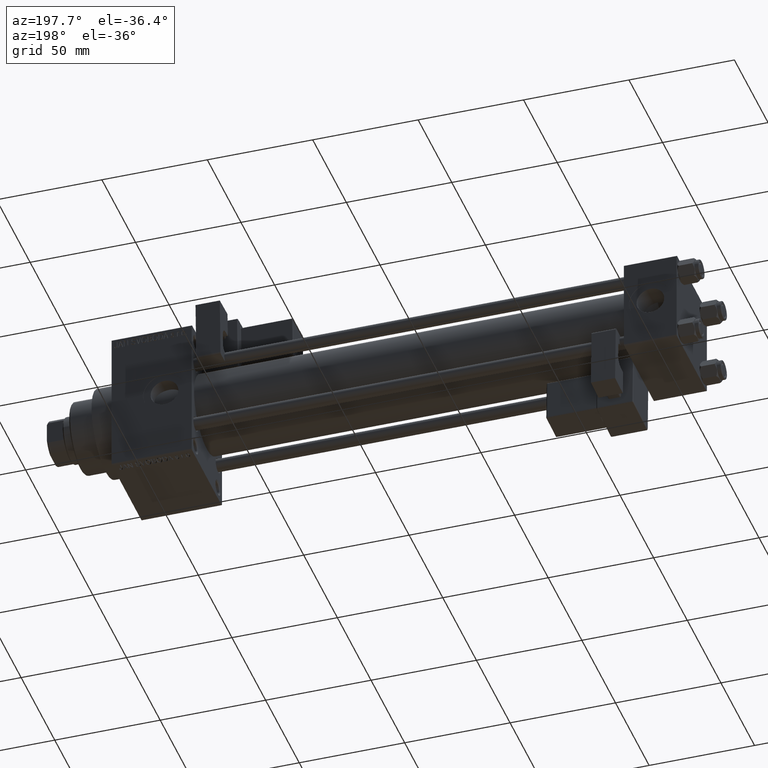
[diagram: clean part render]
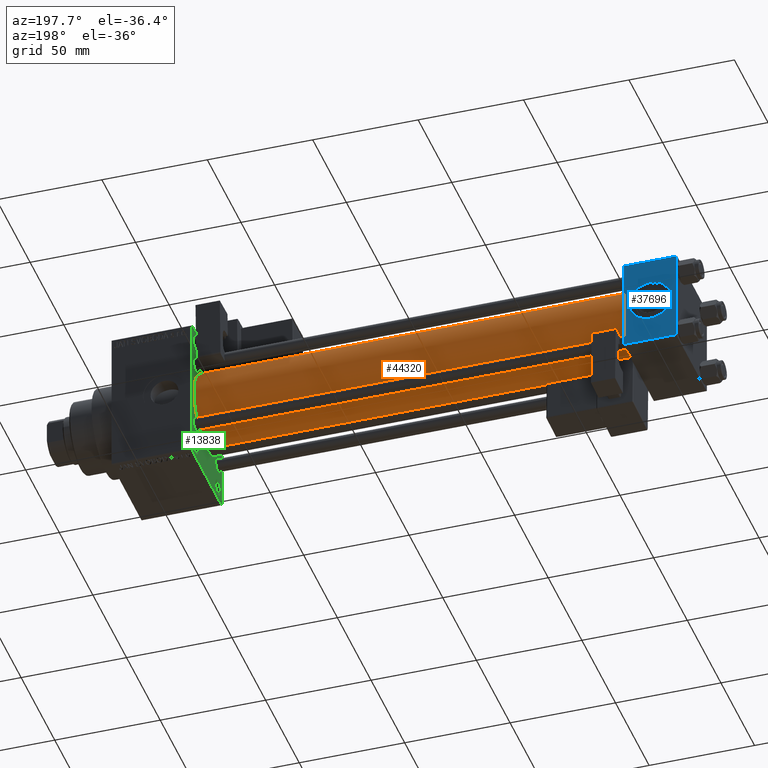
[diagram: same view with three faces highlighted in distinct colors, each labeled with its STEP entity id]
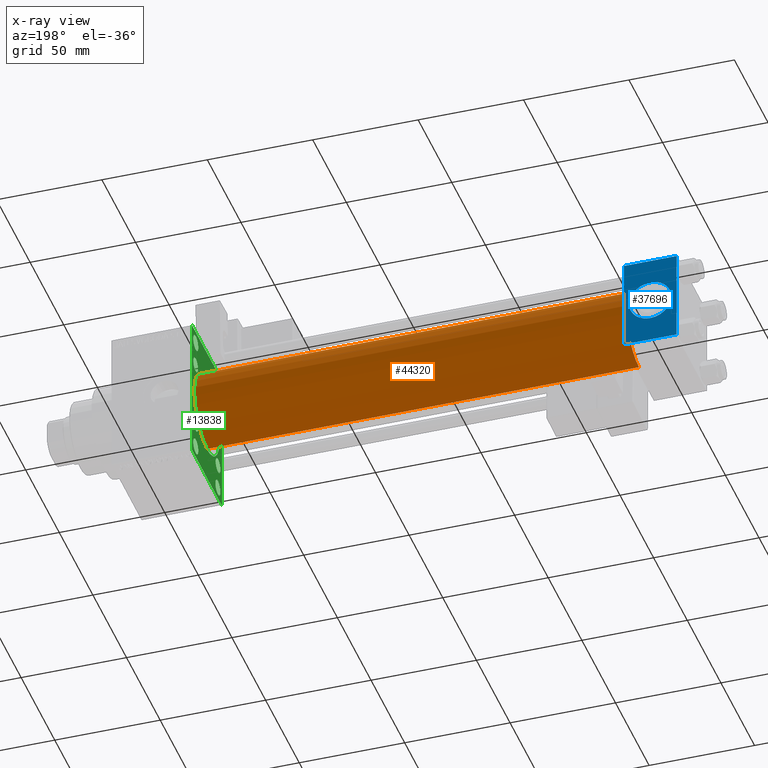
[diagram: x-ray of the same camera — body ghosted, the three highlighted faces saturated]
A machine part, auxiliary view with three faces highlighted in distinct colors.
The next image is the same camera in x-ray (body ghosted, the three faces saturated) — at least one of them is partly hidden behind the body in this view.
Their STEP definitions:

[orange] entity #44320 — the highlighted cylindrical surface (partial cylindrical patch) has radius 19 mm, axis along (-1, -0, -0).
#529 = EDGE_LOOP ( 'NONE', ( #37792, #46408, #26302, #29733 ) ) ;
#2255 = EDGE_CURVE ( 'NONE', #30719, #3682, #15830, .T. ) ;
#3272 = VERTEX_POINT ( 'NONE', #14357 ) ;
#3556 = DIRECTION ( 'NONE',  ( 0.000000000000000000, 0.000000000000000000, -1.000000000000000000 ) ) ;
#3682 = VERTEX_POINT ( 'NONE', #12189 ) ;
#8078 = LINE ( 'NONE', #20770, #20738 ) ;
#10568 = CARTESIAN_POINT ( 'NONE',  ( 229.9999999999999716, -2.602085213965210642E-15, 19.00000000000000000 ) ) ;
#12189 = CARTESIAN_POINT ( 'NONE',  ( 24.99999999999999289, -2.602085213965210642E-15, 19.00000000000000000 ) ) ;
#12488 = DIRECTION ( 'NONE',  ( 1.000000000000000000, -0.000000000000000000, 0.000000000000000000 ) ) ;
#12928 = AXIS2_PLACEMENT_3D ( 'NONE', #51319, #47178, #3556 ) ;
#14357 = CARTESIAN_POINT ( 'NONE',  ( 229.9999999999999716, -2.752562955852400657E-16, -19.00000000000000000 ) ) ;
#15472 = LINE ( 'NONE', #10568, #47056 ) ;
#15820 = DIRECTION ( 'NONE',  ( -1.000000000000000000, -0.000000000000000000, -0.000000000000000000 ) ) ;
#15830 = CIRCLE ( 'NONE', #18307, 19.00000000000000000 ) ;
#18307 = AXIS2_PLACEMENT_3D ( 'NONE', #44668, #12488, #31737 ) ;
#20738 = VECTOR ( 'NONE', #28836, 1000.000000000000000 ) ;
#20770 = CARTESIAN_POINT ( 'NONE',  ( 229.9999999999999716, -2.752562955852400657E-16, -19.00000000000000000 ) ) ;
#23561 = EDGE_CURVE ( 'NONE', #27071, #3682, #15472, .T. ) ;
#23630 = CYLINDRICAL_SURFACE ( 'NONE', #39734, 19.00000000000000000 ) ;
#23657 = CIRCLE ( 'NONE', #12928, 19.00000000000000000 ) ;
#23882 = DIRECTION ( 'NONE',  ( 0.000000000000000000, 0.000000000000000000, 1.000000000000000000 ) ) ;
#26302 = ORIENTED_EDGE ( 'NONE', *, *, #2255, .T. ) ;
#27071 = VERTEX_POINT ( 'NONE', #46811 ) ;
#28836 = DIRECTION ( 'NONE',  ( -1.000000000000000000, -0.000000000000000000, -0.000000000000000000 ) ) ;
#29733 = ORIENTED_EDGE ( 'NONE', *, *, #23561, .F. ) ;
#30719 = VERTEX_POINT ( 'NONE', #43751 ) ;
#31737 = DIRECTION ( 'NONE',  ( 0.000000000000000000, 0.000000000000000000, 1.000000000000000000 ) ) ;
#35576 = CARTESIAN_POINT ( 'NONE',  ( 229.9999999999999716, -2.602085213965210642E-15, 0.000000000000000000 ) ) ;
#37286 = EDGE_CURVE ( 'NONE', #3272, #27071, #23657, .T. ) ;
#37792 = ORIENTED_EDGE ( 'NONE', *, *, #37286, .F. ) ;
#39734 = AXIS2_PLACEMENT_3D ( 'NONE', #35576, #15820, #23882 ) ;
#43751 = CARTESIAN_POINT ( 'NONE',  ( 24.99999999999999289, -2.752562955852400657E-16, -19.00000000000000000 ) ) ;
#44320 = ADVANCED_FACE ( 'NONE', ( #51376 ), #23630, .T. ) ;
#44668 = CARTESIAN_POINT ( 'NONE',  ( 24.99999999999999289, -2.602085213965210642E-15, 0.000000000000000000 ) ) ;
#46408 = ORIENTED_EDGE ( 'NONE', *, *, #47667, .T. ) ;
#46811 = CARTESIAN_POINT ( 'NONE',  ( 229.9999999999999716, -2.602085213965210642E-15, 19.00000000000000000 ) ) ;
#47056 = VECTOR ( 'NONE', #50771, 1000.000000000000000 ) ;
#47178 = DIRECTION ( 'NONE',  ( 1.000000000000000000, 0.000000000000000000, 0.000000000000000000 ) ) ;
#47667 = EDGE_CURVE ( 'NONE', #3272, #30719, #8078, .T. ) ;
#50771 = DIRECTION ( 'NONE',  ( -1.000000000000000000, -0.000000000000000000, -0.000000000000000000 ) ) ;
#51319 = CARTESIAN_POINT ( 'NONE',  ( 229.9999999999999716, -2.602085213965210642E-15, 0.000000000000000000 ) ) ;
#51376 = FACE_OUTER_BOUND ( 'NONE', #529, .T. ) ;

[blue] entity #37696 — the highlighted planar face has unit normal (0, 1, 0).
#133 = LINE ( 'NONE', #43513, #39413 ) ;
#3141 = CARTESIAN_POINT ( 'NONE',  ( 25.00000000000000000, 22.50000000000000000, -21.99999999999998224 ) ) ;
#3425 = DIRECTION ( 'NONE',  ( 0.000000000000000000, 0.000000000000000000, -1.000000000000000000 ) ) ;
#3639 = DIRECTION ( 'NONE',  ( 0.000000000000000000, 1.000000000000000000, 0.000000000000000000 ) ) ;
#4028 = DIRECTION ( 'NONE',  ( 1.000000000000000000, 0.000000000000000000, 0.000000000000000000 ) ) ;
#5213 = FACE_OUTER_BOUND ( 'NONE', #15748, .T. ) ;
#5829 = ORIENTED_EDGE ( 'NONE', *, *, #34277, .T. ) ;
#7905 = VERTEX_POINT ( 'NONE', #32318 ) ;
#9115 = FACE_BOUND ( 'NONE', #37089, .T. ) ;
#10242 = CARTESIAN_POINT ( 'NONE',  ( 0.000000000000000000, 22.50000000000000000, 21.99999999999999645 ) ) ;
#10651 = CARTESIAN_POINT ( 'NONE',  ( 25.00000000000000000, 22.50000000000000000, 22.50000000000000355 ) ) ;
#10783 = VERTEX_POINT ( 'NONE', #10242 ) ;
#10818 = CARTESIAN_POINT ( 'NONE',  ( 12.50000000000000000, 22.50000000000000000, 0.000000000000000000 ) ) ;
#11167 = CARTESIAN_POINT ( 'NONE',  ( 25.00000000000000000, 22.50000000000000000, 21.99999999999999645 ) ) ;
#11197 = DIRECTION ( 'NONE',  ( -1.000000000000000000, 0.000000000000000000, 0.000000000000000000 ) ) ;
#11203 = EDGE_CURVE ( 'NONE', #47369, #15759, #27576, .T. ) ;
#14354 = EDGE_CURVE ( 'NONE', #10783, #31327, #133, .T. ) ;
#14825 = DIRECTION ( 'NONE',  ( 0.000000000000000000, 0.000000000000000000, 1.000000000000000000 ) ) ;
#15121 = CARTESIAN_POINT ( 'NONE',  ( 0.000000000000000000, 22.50000000000000000, 22.50000000000000355 ) ) ;
#15748 = EDGE_LOOP ( 'NONE', ( #5829, #30299, #33120, #48659 ) ) ;
#15759 = VERTEX_POINT ( 'NONE', #30003 ) ;
#16899 = DIRECTION ( 'NONE',  ( -0.000000000000000000, 1.000000000000000000, 0.000000000000000000 ) ) ;
#17750 = ORIENTED_EDGE ( 'NONE', *, *, #22008, .F. ) ;
#19271 = LINE ( 'NONE', #15121, #46916 ) ;
#19677 = CIRCLE ( 'NONE', #39558, 9.999999999999996447 ) ;
#19795 = CARTESIAN_POINT ( 'NONE',  ( 12.50000000000000000, 22.50000000000000000, 9.999999999999996447 ) ) ;
#20836 = CARTESIAN_POINT ( 'NONE',  ( 25.00000000000000000, 22.50000000000000000, -21.99999999999996803 ) ) ;
#21194 = ORIENTED_EDGE ( 'NONE', *, *, #35331, .F. ) ;
#21985 = AXIS2_PLACEMENT_3D ( 'NONE', #10818, #38869, #27703 ) ;
#22008 = EDGE_CURVE ( 'NONE', #44812, #7905, #19677, .T. ) ;
#23734 = CIRCLE ( 'NONE', #21985, 9.999999999999996447 ) ;
#24546 = AXIS2_PLACEMENT_3D ( 'NONE', #40548, #16899, #41058 ) ;
#26190 = VECTOR ( 'NONE', #30655, 1000.000000000000000 ) ;
#27576 = LINE ( 'NONE', #3141, #43409 ) ;
#27703 = DIRECTION ( 'NONE',  ( 0.000000000000000000, 0.000000000000000000, 1.000000000000000000 ) ) ;
#29637 = PLANE ( 'NONE',  #24546 ) ;
#30003 = CARTESIAN_POINT ( 'NONE',  ( 0.000000000000000000, 22.50000000000000000, -21.99999999999996803 ) ) ;
#30299 = ORIENTED_EDGE ( 'NONE', *, *, #11203, .T. ) ;
#30655 = DIRECTION ( 'NONE',  ( 0.000000000000000000, 0.000000000000000000, -1.000000000000000000 ) ) ;
#31327 = VERTEX_POINT ( 'NONE', #11167 ) ;
#31455 = CARTESIAN_POINT ( 'NONE',  ( 12.50000000000000000, 22.50000000000000000, 0.000000000000000000 ) ) ;
#32318 = CARTESIAN_POINT ( 'NONE',  ( 12.50000000000000178, 22.50000000000000000, -9.999999999999996447 ) ) ;
#33120 = ORIENTED_EDGE ( 'NONE', *, *, #37482, .F. ) ;
#34277 = EDGE_CURVE ( 'NONE', #31327, #47369, #46218, .T. ) ;
#35331 = EDGE_CURVE ( 'NONE', #7905, #44812, #23734, .T. ) ;
#37089 = EDGE_LOOP ( 'NONE', ( #17750, #21194 ) ) ;
#37482 = EDGE_CURVE ( 'NONE', #10783, #15759, #19271, .T. ) ;
#37696 = ADVANCED_FACE ( 'NONE', ( #9115, #5213 ), #29637, .T. ) ;
#38869 = DIRECTION ( 'NONE',  ( 0.000000000000000000, 1.000000000000000000, 0.000000000000000000 ) ) ;
#39413 = VECTOR ( 'NONE', #4028, 1000.000000000000000 ) ;
#39558 = AXIS2_PLACEMENT_3D ( 'NONE', #31455, #3639, #14825 ) ;
#40548 = CARTESIAN_POINT ( 'NONE',  ( 25.00000000000000000, 22.50000000000000000, 22.50000000000000355 ) ) ;
#41058 = DIRECTION ( 'NONE',  ( 0.000000000000000000, -0.000000000000000000, 1.000000000000000000 ) ) ;
#43409 = VECTOR ( 'NONE', #11197, 1000.000000000000000 ) ;
#43513 = CARTESIAN_POINT ( 'NONE',  ( 25.00000000000000000, 22.50000000000000000, 21.99999999999999645 ) ) ;
#44812 = VERTEX_POINT ( 'NONE', #19795 ) ;
#46218 = LINE ( 'NONE', #10651, #26190 ) ;
#46916 = VECTOR ( 'NONE', #3425, 1000.000000000000000 ) ;
#47369 = VERTEX_POINT ( 'NONE', #20836 ) ;
#48659 = ORIENTED_EDGE ( 'NONE', *, *, #14354, .T. ) ;

[green] entity #13838 — the highlighted planar face has unit normal (-1, 0, 0).
#402 = DIRECTION ( 'NONE',  ( 1.000000000000000000, 0.000000000000000000, 0.000000000000000000 ) ) ;
#663 = EDGE_CURVE ( 'NONE', #22984, #7656, #8312, .T. ) ;
#666 = CARTESIAN_POINT ( 'NONE',  ( 229.9999999999999716, 22.49999999999999645, 34.50000000000000000 ) ) ;
#954 = LINE ( 'NONE', #25628, #11184 ) ;
#982 = ORIENTED_EDGE ( 'NONE', *, *, #26119, .T. ) ;
#1127 = VECTOR ( 'NONE', #23765, 1000.000000000000000 ) ;
#1221 = ORIENTED_EDGE ( 'NONE', *, *, #30838, .T. ) ;
#1375 = CIRCLE ( 'NONE', #40397, 3.500000000000006661 ) ;
#1699 = ORIENTED_EDGE ( 'NONE', *, *, #31333, .T. ) ;
#2410 = VECTOR ( 'NONE', #34014, 1000.000000000000000 ) ;
#3259 = CARTESIAN_POINT ( 'NONE',  ( 229.9999999999999716, 16.59999999999999787, -20.10000000000000853 ) ) ;
#3272 = VERTEX_POINT ( 'NONE', #14357 ) ;
#3556 = DIRECTION ( 'NONE',  ( 0.000000000000000000, 0.000000000000000000, -1.000000000000000000 ) ) ;
#3703 = VERTEX_POINT ( 'NONE', #25666 ) ;
#3906 = CARTESIAN_POINT ( 'NONE',  ( 229.9999999999999716, -16.59999999999999076, 16.60000000000000853 ) ) ;
#4033 = DIRECTION ( 'NONE',  ( 0.000000000000000000, 0.000000000000000000, 1.000000000000000000 ) ) ;
#4073 = VERTEX_POINT ( 'NONE', #41374 ) ;
#4155 = CARTESIAN_POINT ( 'NONE',  ( 229.9999999999999716, -16.59999999999999076, -13.10000000000000142 ) ) ;
#4464 = CARTESIAN_POINT ( 'NONE',  ( 229.9999999999999716, -16.50000000000000000, -25.24999999999998934 ) ) ;
#4522 = DIRECTION ( 'NONE',  ( 0.000000000000000000, 0.000000000000000000, 1.000000000000000000 ) ) ;
#4626 = DIRECTION ( 'NONE',  ( 0.000000000000000000, 0.000000000000000000, 1.000000000000000000 ) ) ;
#4872 = AXIS2_PLACEMENT_3D ( 'NONE', #23144, #34836, #47018 ) ;
#4991 = DIRECTION ( 'NONE',  ( 0.000000000000000000, 0.000000000000000000, 1.000000000000000000 ) ) ;
#5288 = VERTEX_POINT ( 'NONE', #17557 ) ;
#5307 = CARTESIAN_POINT ( 'NONE',  ( 229.9999999999999716, 21.99999999999996803, 35.00000000000000000 ) ) ;
#5666 = DIRECTION ( 'NONE',  ( 0.000000000000000000, 0.000000000000000000, 1.000000000000000000 ) ) ;
#5951 = ORIENTED_EDGE ( 'NONE', *, *, #13362, .T. ) ;
#6220 = AXIS2_PLACEMENT_3D ( 'NONE', #24377, #40208, #4626 ) ;
#7116 = CIRCLE ( 'NONE', #32012, 3.500000000000003109 ) ;
#7231 = FACE_BOUND ( 'NONE', #14477, .T. ) ;
#7294 = DIRECTION ( 'NONE',  ( 0.000000000000000000, 0.000000000000000000, 1.000000000000000000 ) ) ;
#7409 = CIRCLE ( 'NONE', #8264, 19.00000000000000000 ) ;
#7656 = VERTEX_POINT ( 'NONE', #25871 ) ;
#7935 = AXIS2_PLACEMENT_3D ( 'NONE', #31857, #402, #39382 ) ;
#8154 = VERTEX_POINT ( 'NONE', #11674 ) ;
#8264 = AXIS2_PLACEMENT_3D ( 'NONE', #16886, #28096, #40791 ) ;
#8312 = CIRCLE ( 'NONE', #37330, 3.500000000000006661 ) ;
#8480 = ORIENTED_EDGE ( 'NONE', *, *, #49441, .T. ) ;
#8887 = CARTESIAN_POINT ( 'NONE',  ( 229.9999999999999716, -16.59999999999999076, 20.10000000000001208 ) ) ;
#9149 = CARTESIAN_POINT ( 'NONE',  ( 229.9999999999999716, 16.50000000000000000, 29.00000000000000355 ) ) ;
#9472 = CIRCLE ( 'NONE', #13623, 3.500000000000006661 ) ;
#9595 = ORIENTED_EDGE ( 'NONE', *, *, #13990, .T. ) ;
#9609 = ORIENTED_EDGE ( 'NONE', *, *, #35399, .T. ) ;
#10009 = VERTEX_POINT ( 'NONE', #18790 ) ;
#10316 = ORIENTED_EDGE ( 'NONE', *, *, #45759, .T. ) ;
#10870 = DIRECTION ( 'NONE',  ( -1.000000000000000000, 0.000000000000000000, -0.000000000000000000 ) ) ;
#11184 = VECTOR ( 'NONE', #17564, 1000.000000000000000 ) ;
#11213 = DIRECTION ( 'NONE',  ( 0.000000000000000000, 0.000000000000000000, 1.000000000000000000 ) ) ;
#11354 = LINE ( 'NONE', #15243, #49427 ) ;
#11584 = LINE ( 'NONE', #15735, #32775 ) ;
#11674 = CARTESIAN_POINT ( 'NONE',  ( 229.9999999999999716, 16.59999999999999787, -13.09999999999999787 ) ) ;
#12695 = DIRECTION ( 'NONE',  ( 1.000000000000000000, 0.000000000000000000, 0.000000000000000000 ) ) ;
#12928 = AXIS2_PLACEMENT_3D ( 'NONE', #51319, #47178, #3556 ) ;
#13075 = CARTESIAN_POINT ( 'NONE',  ( 229.9999999999999716, -16.50000000000000000, 29.00000000000000711 ) ) ;
#13290 = DIRECTION ( 'NONE',  ( 1.000000000000000000, 0.000000000000000000, 0.000000000000000000 ) ) ;
#13362 = EDGE_CURVE ( 'NONE', #25973, #8154, #9472, .T. ) ;
#13623 = AXIS2_PLACEMENT_3D ( 'NONE', #45596, #18580, #34188 ) ;
#13838 = ADVANCED_FACE ( 'NONE', ( #7231, #26981, #50073, #50574, #49818, #46433, #45671, #45932, #23072, #14255 ), #33993, .T. ) ;
#13990 = EDGE_CURVE ( 'NONE', #27315, #38132, #954, .T. ) ;
#14108 = DIRECTION ( 'NONE',  ( 0.000000000000000000, 0.000000000000000000, 1.000000000000000000 ) ) ;
#14255 = FACE_OUTER_BOUND ( 'NONE', #39534, .T. ) ;
#14357 = CARTESIAN_POINT ( 'NONE',  ( 229.9999999999999716, -2.752562955852400657E-16, -19.00000000000000000 ) ) ;
#14477 = EDGE_LOOP ( 'NONE', ( #1221, #22813 ) ) ;
#15114 = DIRECTION ( 'NONE',  ( 0.000000000000000000, 0.000000000000000000, 1.000000000000000000 ) ) ;
#15243 = CARTESIAN_POINT ( 'NONE',  ( 229.9999999999999716, -22.50000000000000355, 35.00000000000000000 ) ) ;
#15247 = DIRECTION ( 'NONE',  ( 1.000000000000000000, 0.000000000000000000, 0.000000000000000000 ) ) ;
#15560 = EDGE_CURVE ( 'NONE', #10009, #33577, #36116, .T. ) ;
#15562 = ORIENTED_EDGE ( 'NONE', *, *, #37286, .T. ) ;
#15735 = CARTESIAN_POINT ( 'NONE',  ( 229.9999999999999716, 22.49999999999999645, -35.00000000000000000 ) ) ;
#16277 = AXIS2_PLACEMENT_3D ( 'NONE', #3906, #30692, #7294 ) ;
#16491 = DIRECTION ( 'NONE',  ( 1.000000000000000000, 0.000000000000000000, 0.000000000000000000 ) ) ;
#16886 = CARTESIAN_POINT ( 'NONE',  ( 229.9999999999999716, -2.602085213965210642E-15, 0.000000000000000000 ) ) ;
#17477 = CARTESIAN_POINT ( 'NONE',  ( 229.9999999999999716, -16.59999999999999076, -16.60000000000000853 ) ) ;
#17557 = CARTESIAN_POINT ( 'NONE',  ( 229.9999999999999716, -16.50000000000000000, -32.75000000000000000 ) ) ;
#17564 = DIRECTION ( 'NONE',  ( -0.000000000000000000, 0.7071067811865279218, 0.7071067811865672237 ) ) ;
#18089 = EDGE_LOOP ( 'NONE', ( #27294, #5951 ) ) ;
#18111 = EDGE_CURVE ( 'NONE', #33577, #10009, #25276, .T. ) ;
#18318 = DIRECTION ( 'NONE',  ( 1.000000000000000000, 0.000000000000000000, 0.000000000000000000 ) ) ;
#18512 = EDGE_CURVE ( 'NONE', #8154, #25973, #25315, .T. ) ;
#18580 = DIRECTION ( 'NONE',  ( 1.000000000000000000, 0.000000000000000000, 0.000000000000000000 ) ) ;
#18790 = CARTESIAN_POINT ( 'NONE',  ( 229.9999999999999716, 16.50000000000000000, -32.75000000000000000 ) ) ;
#18817 = ORIENTED_EDGE ( 'NONE', *, *, #48704, .T. ) ;
#18952 = DIRECTION ( 'NONE',  ( 0.000000000000000000, 0.000000000000000000, -1.000000000000000000 ) ) ;
#19235 = CIRCLE ( 'NONE', #20871, 3.500000000000006661 ) ;
#20349 = AXIS2_PLACEMENT_3D ( 'NONE', #50920, #46527, #11213 ) ;
#20520 = EDGE_CURVE ( 'NONE', #27315, #4073, #11354, .T. ) ;
#20870 = VERTEX_POINT ( 'NONE', #4464 ) ;
#20871 = AXIS2_PLACEMENT_3D ( 'NONE', #43521, #16491, #4033 ) ;
#21270 = ORIENTED_EDGE ( 'NONE', *, *, #38092, .T. ) ;
#22075 = CARTESIAN_POINT ( 'NONE',  ( 229.9999999999999716, 28.49999999999937472, 28.50000000000095923 ) ) ;
#22316 = EDGE_CURVE ( 'NONE', #7656, #22984, #1375, .T. ) ;
#22813 = ORIENTED_EDGE ( 'NONE', *, *, #47543, .T. ) ;
#22869 = LINE ( 'NONE', #50374, #31863 ) ;
#22888 = CARTESIAN_POINT ( 'NONE',  ( 229.9999999999999716, 21.99999999999999645, -35.00000000000000000 ) ) ;
#22984 = VERTEX_POINT ( 'NONE', #4155 ) ;
#23072 = FACE_BOUND ( 'NONE', #35244, .T. ) ;
#23144 = CARTESIAN_POINT ( 'NONE',  ( 229.9999999999999716, -16.50000000000000000, 29.00000000000000711 ) ) ;
#23314 = CARTESIAN_POINT ( 'NONE',  ( 229.9999999999999716, 16.50000000000000000, 32.75000000000000711 ) ) ;
#23657 = CIRCLE ( 'NONE', #12928, 19.00000000000000000 ) ;
#23765 = DIRECTION ( 'NONE',  ( 0.000000000000000000, -1.000000000000000000, 0.000000000000000000 ) ) ;
#23829 = CARTESIAN_POINT ( 'NONE',  ( 229.9999999999999716, 16.59999999999999787, 16.60000000000000497 ) ) ;
#24063 = ORIENTED_EDGE ( 'NONE', *, *, #663, .T. ) ;
#24377 = CARTESIAN_POINT ( 'NONE',  ( 229.9999999999999716, 16.59999999999999787, -16.60000000000000497 ) ) ;
#24630 = ORIENTED_EDGE ( 'NONE', *, *, #22316, .T. ) ;
#24684 = DIRECTION ( 'NONE',  ( 1.000000000000000000, 0.000000000000000000, 0.000000000000000000 ) ) ;
#24786 = CIRCLE ( 'NONE', #45489, 3.750000000000003553 ) ;
#24813 = EDGE_LOOP ( 'NONE', ( #31667, #982 ) ) ;
#25184 = DIRECTION ( 'NONE',  ( 0.000000000000000000, 0.000000000000000000, 1.000000000000000000 ) ) ;
#25276 = CIRCLE ( 'NONE', #31153, 3.750000000000006661 ) ;
#25315 = CIRCLE ( 'NONE', #6220, 3.500000000000006661 ) ;
#25572 = CIRCLE ( 'NONE', #32222, 3.750000000000006661 ) ;
#25614 = DIRECTION ( 'NONE',  ( -0.000000000000000000, -0.7071067811865279218, -0.7071067811865672237 ) ) ;
#25628 = CARTESIAN_POINT ( 'NONE',  ( 229.9999999999999716, -28.50000000000061462, 28.49999999999903011 ) ) ;
#25666 = CARTESIAN_POINT ( 'NONE',  ( 229.9999999999999716, -16.50000000000000000, 32.75000000000001421 ) ) ;
#25670 = CARTESIAN_POINT ( 'NONE',  ( 229.9999999999999716, -21.99999999999998934, 35.00000000000000000 ) ) ;
#25871 = CARTESIAN_POINT ( 'NONE',  ( 229.9999999999999716, -16.59999999999999076, -20.10000000000001208 ) ) ;
#25973 = VERTEX_POINT ( 'NONE', #3259 ) ;
#25982 = LINE ( 'NONE', #22075, #2410 ) ;
#26119 = EDGE_CURVE ( 'NONE', #41370, #38873, #19235, .T. ) ;
#26137 = LINE ( 'NONE', #30290, #35830 ) ;
#26496 = VERTEX_POINT ( 'NONE', #23314 ) ;
#26520 = CIRCLE ( 'NONE', #30673, 3.500000000000006661 ) ;
#26693 = ORIENTED_EDGE ( 'NONE', *, *, #26727, .T. ) ;
#26727 = EDGE_CURVE ( 'NONE', #51074, #39036, #26137, .T. ) ;
#26981 = FACE_BOUND ( 'NONE', #45808, .T. ) ;
#27071 = VERTEX_POINT ( 'NONE', #46811 ) ;
#27213 = DIRECTION ( 'NONE',  ( 0.000000000000000000, 0.000000000000000000, -1.000000000000000000 ) ) ;
#27294 = ORIENTED_EDGE ( 'NONE', *, *, #18512, .T. ) ;
#27315 = VERTEX_POINT ( 'NONE', #50318 ) ;
#27644 = CARTESIAN_POINT ( 'NONE',  ( 229.9999999999999716, 16.59999999999999787, 13.09999999999999609 ) ) ;
#27753 = CIRCLE ( 'NONE', #32701, 3.750000000000000000 ) ;
#27998 = VERTEX_POINT ( 'NONE', #49432 ) ;
#28096 = DIRECTION ( 'NONE',  ( 1.000000000000000000, 0.000000000000000000, 0.000000000000000000 ) ) ;
#28112 = VERTEX_POINT ( 'NONE', #8887 ) ;
#28728 = VERTEX_POINT ( 'NONE', #5307 ) ;
#29450 = DIRECTION ( 'NONE',  ( 1.000000000000000000, 0.000000000000000000, 0.000000000000000000 ) ) ;
#29519 = VECTOR ( 'NONE', #50800, 1000.000000000000000 ) ;
#29584 = ORIENTED_EDGE ( 'NONE', *, *, #20520, .F. ) ;
#29766 = CIRCLE ( 'NONE', #4872, 3.750000000000000000 ) ;
#30036 = CARTESIAN_POINT ( 'NONE',  ( 229.9999999999999716, 16.50000000000000000, 29.00000000000000355 ) ) ;
#30290 = CARTESIAN_POINT ( 'NONE',  ( 229.9999999999999716, 28.50000000000060751, -28.49999999999902656 ) ) ;
#30557 = EDGE_CURVE ( 'NONE', #28728, #38132, #30802, .T. ) ;
#30673 = AXIS2_PLACEMENT_3D ( 'NONE', #23829, #15247, #39668 ) ;
#30692 = DIRECTION ( 'NONE',  ( 1.000000000000000000, 0.000000000000000000, 0.000000000000000000 ) ) ;
#30802 = LINE ( 'NONE', #35460, #1127 ) ;
#30838 = EDGE_CURVE ( 'NONE', #3703, #46914, #27753, .T. ) ;
#31153 = AXIS2_PLACEMENT_3D ( 'NONE', #40780, #24684, #44413 ) ;
#31252 = ORIENTED_EDGE ( 'NONE', *, *, #34566, .T. ) ;
#31333 = EDGE_CURVE ( 'NONE', #42166, #51074, #22869, .T. ) ;
#31662 = ORIENTED_EDGE ( 'NONE', *, *, #30557, .F. ) ;
#31666 = CARTESIAN_POINT ( 'NONE',  ( 229.9999999999999716, 16.50000000000000000, 25.25000000000000000 ) ) ;
#31667 = ORIENTED_EDGE ( 'NONE', *, *, #49705, .T. ) ;
#31857 = CARTESIAN_POINT ( 'NONE',  ( 229.9999999999999716, 16.50000000000000000, -28.99999999999999289 ) ) ;
#31863 = VECTOR ( 'NONE', #18952, 1000.000000000000000 ) ;
#31956 = CARTESIAN_POINT ( 'NONE',  ( 229.9999999999999716, -21.99999999999996092, -35.00000000000000000 ) ) ;
#32012 = AXIS2_PLACEMENT_3D ( 'NONE', #36341, #12695, #5666 ) ;
#32222 = AXIS2_PLACEMENT_3D ( 'NONE', #42393, #38762, #15114 ) ;
#32368 = EDGE_LOOP ( 'NONE', ( #21270, #41282 ) ) ;
#32426 = ORIENTED_EDGE ( 'NONE', *, *, #33862, .T. ) ;
#32701 = AXIS2_PLACEMENT_3D ( 'NONE', #13075, #35968, #4522 ) ;
#32775 = VECTOR ( 'NONE', #35235, 1000.000000000000000 ) ;
#33577 = VERTEX_POINT ( 'NONE', #39068 ) ;
#33862 = EDGE_CURVE ( 'NONE', #5288, #20870, #42736, .T. ) ;
#33948 = AXIS2_PLACEMENT_3D ( 'NONE', #30036, #18318, #50254 ) ;
#33964 = LINE ( 'NONE', #45904, #29519 ) ;
#33993 = PLANE ( 'NONE',  #46031 ) ;
#34014 = DIRECTION ( 'NONE',  ( 0.000000000000000000, 0.7071067811865672237, -0.7071067811865279218 ) ) ;
#34188 = DIRECTION ( 'NONE',  ( 0.000000000000000000, 0.000000000000000000, 1.000000000000000000 ) ) ;
#34566 = EDGE_CURVE ( 'NONE', #50419, #4073, #33964, .T. ) ;
#34836 = DIRECTION ( 'NONE',  ( 1.000000000000000000, 0.000000000000000000, 0.000000000000000000 ) ) ;
#34960 = CARTESIAN_POINT ( 'NONE',  ( 229.9999999999999716, -16.50000000000000000, 25.25000000000000355 ) ) ;
#35047 = ORIENTED_EDGE ( 'NONE', *, *, #43891, .T. ) ;
#35235 = DIRECTION ( 'NONE',  ( 0.000000000000000000, -1.000000000000000000, 0.000000000000000000 ) ) ;
#35244 = EDGE_LOOP ( 'NONE', ( #8480, #15562 ) ) ;
#35377 = CIRCLE ( 'NONE', #16277, 3.500000000000003109 ) ;
#35399 = EDGE_CURVE ( 'NONE', #39036, #50419, #11584, .T. ) ;
#35460 = CARTESIAN_POINT ( 'NONE',  ( 229.9999999999999716, 22.49999999999999645, 35.00000000000000000 ) ) ;
#35830 = VECTOR ( 'NONE', #25614, 1000.000000000000000 ) ;
#35968 = DIRECTION ( 'NONE',  ( 1.000000000000000000, 0.000000000000000000, 0.000000000000000000 ) ) ;
#36116 = CIRCLE ( 'NONE', #7935, 3.750000000000006661 ) ;
#36295 = ORIENTED_EDGE ( 'NONE', *, *, #15560, .T. ) ;
#36341 = CARTESIAN_POINT ( 'NONE',  ( 229.9999999999999716, -16.59999999999999076, 16.60000000000000853 ) ) ;
#37286 = EDGE_CURVE ( 'NONE', #3272, #27071, #23657, .T. ) ;
#37330 = AXIS2_PLACEMENT_3D ( 'NONE', #17477, #29450, #14108 ) ;
#37901 = CARTESIAN_POINT ( 'NONE',  ( 229.9999999999999716, -16.59999999999999076, -16.60000000000000853 ) ) ;
#38092 = EDGE_CURVE ( 'NONE', #28112, #27998, #7116, .T. ) ;
#38132 = VERTEX_POINT ( 'NONE', #25670 ) ;
#38762 = DIRECTION ( 'NONE',  ( 1.000000000000000000, 0.000000000000000000, 0.000000000000000000 ) ) ;
#38873 = VERTEX_POINT ( 'NONE', #48604 ) ;
#39036 = VERTEX_POINT ( 'NONE', #22888 ) ;
#39068 = CARTESIAN_POINT ( 'NONE',  ( 229.9999999999999716, 16.50000000000000000, -25.24999999999998934 ) ) ;
#39167 = EDGE_CURVE ( 'NONE', #27998, #28112, #35377, .T. ) ;
#39381 = EDGE_LOOP ( 'NONE', ( #10316, #43366 ) ) ;
#39382 = DIRECTION ( 'NONE',  ( 0.000000000000000000, 0.000000000000000000, 1.000000000000000000 ) ) ;
#39534 = EDGE_LOOP ( 'NONE', ( #9609, #31252, #29584, #9595, #31662, #18817, #1699, #26693 ) ) ;
#39668 = DIRECTION ( 'NONE',  ( 0.000000000000000000, 0.000000000000000000, 1.000000000000000000 ) ) ;
#40121 = CARTESIAN_POINT ( 'NONE',  ( 229.9999999999999716, 22.49999999999999645, -34.49999999999997158 ) ) ;
#40208 = DIRECTION ( 'NONE',  ( 1.000000000000000000, 0.000000000000000000, 0.000000000000000000 ) ) ;
#40397 = AXIS2_PLACEMENT_3D ( 'NONE', #37901, #44903, #25184 ) ;
#40408 = VERTEX_POINT ( 'NONE', #31666 ) ;
#40780 = CARTESIAN_POINT ( 'NONE',  ( 229.9999999999999716, 16.50000000000000000, -28.99999999999999289 ) ) ;
#40791 = DIRECTION ( 'NONE',  ( 0.000000000000000000, 0.000000000000000000, -1.000000000000000000 ) ) ;
#41282 = ORIENTED_EDGE ( 'NONE', *, *, #39167, .T. ) ;
#41370 = VERTEX_POINT ( 'NONE', #27644 ) ;
#41374 = CARTESIAN_POINT ( 'NONE',  ( 229.9999999999999716, -22.50000000000000355, -34.50000000000000000 ) ) ;
#41787 = DIRECTION ( 'NONE',  ( -0.000000000000000000, 0.000000000000000000, 1.000000000000000000 ) ) ;
#42166 = VERTEX_POINT ( 'NONE', #666 ) ;
#42305 = ORIENTED_EDGE ( 'NONE', *, *, #18111, .T. ) ;
#42393 = CARTESIAN_POINT ( 'NONE',  ( 229.9999999999999716, -16.50000000000000000, -28.99999999999999289 ) ) ;
#42736 = CIRCLE ( 'NONE', #20349, 3.750000000000006661 ) ;
#42803 = CARTESIAN_POINT ( 'NONE',  ( 229.9999999999999716, 0.000000000000000000, 0.000000000000000000 ) ) ;
#43060 = CIRCLE ( 'NONE', #33948, 3.750000000000003553 ) ;
#43152 = EDGE_LOOP ( 'NONE', ( #42305, #36295 ) ) ;
#43300 = EDGE_LOOP ( 'NONE', ( #24063, #24630 ) ) ;
#43366 = ORIENTED_EDGE ( 'NONE', *, *, #47344, .T. ) ;
#43521 = CARTESIAN_POINT ( 'NONE',  ( 229.9999999999999716, 16.59999999999999787, 16.60000000000000497 ) ) ;
#43891 = EDGE_CURVE ( 'NONE', #20870, #5288, #25572, .T. ) ;
#44413 = DIRECTION ( 'NONE',  ( 0.000000000000000000, 0.000000000000000000, 1.000000000000000000 ) ) ;
#44903 = DIRECTION ( 'NONE',  ( 1.000000000000000000, 0.000000000000000000, 0.000000000000000000 ) ) ;
#45489 = AXIS2_PLACEMENT_3D ( 'NONE', #9149, #13290, #4991 ) ;
#45596 = CARTESIAN_POINT ( 'NONE',  ( 229.9999999999999716, 16.59999999999999787, -16.60000000000000497 ) ) ;
#45671 = FACE_BOUND ( 'NONE', #18089, .T. ) ;
#45759 = EDGE_CURVE ( 'NONE', #26496, #40408, #43060, .T. ) ;
#45808 = EDGE_LOOP ( 'NONE', ( #35047, #32426 ) ) ;
#45904 = CARTESIAN_POINT ( 'NONE',  ( 229.9999999999999716, -28.49999999999937828, -28.50000000000096279 ) ) ;
#45932 = FACE_BOUND ( 'NONE', #43300, .T. ) ;
#46031 = AXIS2_PLACEMENT_3D ( 'NONE', #42803, #10870, #41787 ) ;
#46433 = FACE_BOUND ( 'NONE', #24813, .T. ) ;
#46527 = DIRECTION ( 'NONE',  ( 1.000000000000000000, 0.000000000000000000, 0.000000000000000000 ) ) ;
#46811 = CARTESIAN_POINT ( 'NONE',  ( 229.9999999999999716, -2.602085213965210642E-15, 19.00000000000000000 ) ) ;
#46914 = VERTEX_POINT ( 'NONE', #34960 ) ;
#47018 = DIRECTION ( 'NONE',  ( 0.000000000000000000, 0.000000000000000000, 1.000000000000000000 ) ) ;
#47178 = DIRECTION ( 'NONE',  ( 1.000000000000000000, 0.000000000000000000, 0.000000000000000000 ) ) ;
#47344 = EDGE_CURVE ( 'NONE', #40408, #26496, #24786, .T. ) ;
#47543 = EDGE_CURVE ( 'NONE', #46914, #3703, #29766, .T. ) ;
#48604 = CARTESIAN_POINT ( 'NONE',  ( 229.9999999999999716, 16.59999999999999787, 20.10000000000001208 ) ) ;
#48704 = EDGE_CURVE ( 'NONE', #28728, #42166, #25982, .T. ) ;
#49427 = VECTOR ( 'NONE', #27213, 1000.000000000000000 ) ;
#49432 = CARTESIAN_POINT ( 'NONE',  ( 229.9999999999999716, -16.59999999999999076, 13.10000000000000142 ) ) ;
#49441 = EDGE_CURVE ( 'NONE', #27071, #3272, #7409, .T. ) ;
#49705 = EDGE_CURVE ( 'NONE', #38873, #41370, #26520, .T. ) ;
#49818 = FACE_BOUND ( 'NONE', #32368, .T. ) ;
#50073 = FACE_BOUND ( 'NONE', #43152, .T. ) ;
#50254 = DIRECTION ( 'NONE',  ( 0.000000000000000000, 0.000000000000000000, 1.000000000000000000 ) ) ;
#50318 = CARTESIAN_POINT ( 'NONE',  ( 229.9999999999999716, -22.50000000000000355, 34.49999999999997158 ) ) ;
#50374 = CARTESIAN_POINT ( 'NONE',  ( 229.9999999999999716, 22.49999999999999645, 35.00000000000000000 ) ) ;
#50419 = VERTEX_POINT ( 'NONE', #31956 ) ;
#50574 = FACE_BOUND ( 'NONE', #39381, .T. ) ;
#50800 = DIRECTION ( 'NONE',  ( 0.000000000000000000, -0.7071067811865672237, 0.7071067811865279218 ) ) ;
#50920 = CARTESIAN_POINT ( 'NONE',  ( 229.9999999999999716, -16.50000000000000000, -28.99999999999999289 ) ) ;
#51074 = VERTEX_POINT ( 'NONE', #40121 ) ;
#51319 = CARTESIAN_POINT ( 'NONE',  ( 229.9999999999999716, -2.602085213965210642E-15, 0.000000000000000000 ) ) ;